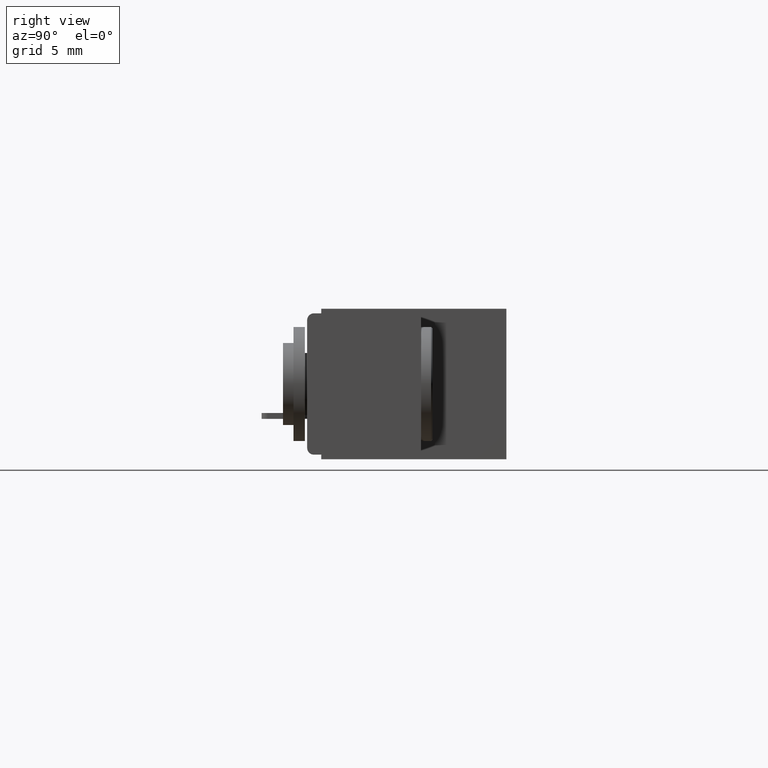
[diagram: clean part render]
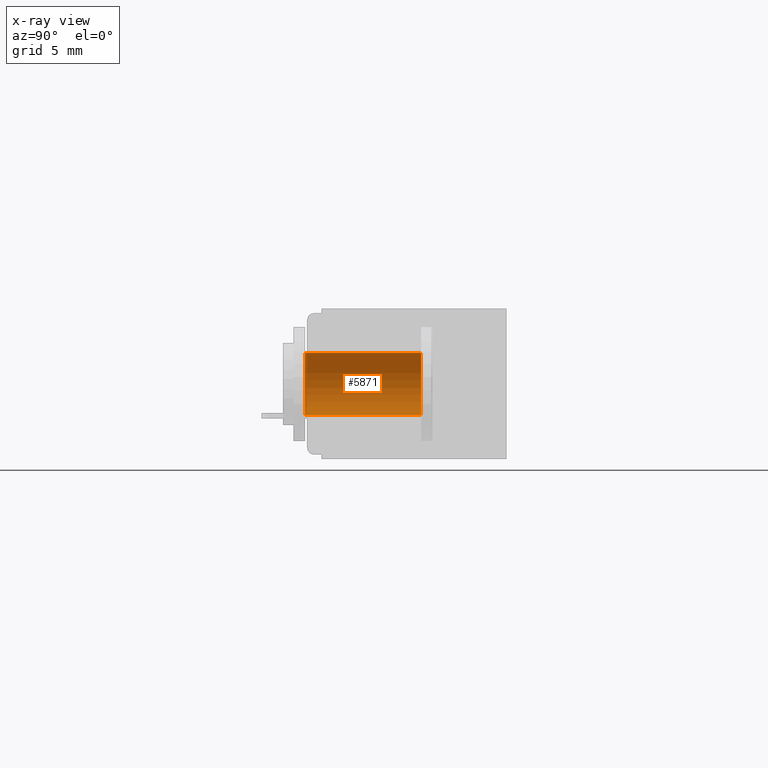
[diagram: x-ray — body ghosted, one internal face saturated and labeled with its STEP entity id]
A machine part, right view, then the same camera in x-ray: the body is ghosted and one INTERNAL B-rep face — a face not visible from any outside direction — is saturated and labeled: STEP entity #5871.
In plain terms, the highlighted cylindrical surface (edge-blend (fillet) strip) has radius 1.7272 mm, axis along (-0, 1, 0).
Its self-contained STEP definition (entity closure, byte-faithful):
#634 = VERTEX_POINT ( 'NONE', #12532 ) ;
#905 = CARTESIAN_POINT ( 'NONE',  ( 4.349588526109266700E-033, 0.2800000000000000300, -0.06800000000000001900 ) ) ;
#937 = LINE ( 'NONE', #8521, #9348 ) ;
#1557 = VERTEX_POINT ( 'NONE', #8668 ) ;
#2229 = VERTEX_POINT ( 'NONE', #905 ) ;
#2459 = EDGE_LOOP ( 'NONE', ( #6359, #6346, #6136, #5131 ) ) ;
#2898 = VERTEX_POINT ( 'NONE', #4845 ) ;
#2994 = AXIS2_PLACEMENT_3D ( 'NONE', #3608, #10700, #4733 ) ;
#3509 = DIRECTION ( 'NONE',  ( -3.408749858497505200E-034, 0.0000000000000000000, 1.000000000000000000 ) ) ;
#3536 = EDGE_CURVE ( 'NONE', #2898, #634, #3785, .T. ) ;
#3578 = DIRECTION ( 'NONE',  ( -2.465190328815661900E-032, 1.000000000000000000, 0.0000000000000000000 ) ) ;
#3608 = CARTESIAN_POINT ( 'NONE',  ( 0.0000000000000000000, 0.2800000000000000300, 0.0000000000000000000 ) ) ;
#3785 = CIRCLE ( 'NONE', #10490, 0.06800000000000001900 ) ;
#3867 = FACE_OUTER_BOUND ( 'NONE', #2459, .T. ) ;
#4093 = DIRECTION ( 'NONE',  ( 3.408749858497505200E-034, 0.0000000000000000000, -1.000000000000000000 ) ) ;
#4137 = CARTESIAN_POINT ( 'NONE',  ( 0.0000000000000000000, 0.3279999999999999000, 0.0000000000000000000 ) ) ;
#4228 = DIRECTION ( 'NONE',  ( 2.465190328815661900E-032, -1.000000000000000000, 0.0000000000000000000 ) ) ;
#4461 = CIRCLE ( 'NONE', #2994, 0.06800000000000001900 ) ;
#4733 = DIRECTION ( 'NONE',  ( -3.408749858497505200E-034, 0.0000000000000000000, 1.000000000000000000 ) ) ;
#4845 = CARTESIAN_POINT ( 'NONE',  ( 8.327598234202008000E-018, 0.02500000000000000500, 0.06800000000000001900 ) ) ;
#5007 = VECTOR ( 'NONE', #5314, 39.37007874015748100 ) ;
#5131 = ORIENTED_EDGE ( 'NONE', *, *, #9267, .F. ) ;
#5247 = CARTESIAN_POINT ( 'NONE',  ( 0.0000000000000000000, 0.02500000000000000500, 0.0000000000000000000 ) ) ;
#5314 = DIRECTION ( 'NONE',  ( 2.465190328815661900E-032, -1.000000000000000000, 0.0000000000000000000 ) ) ;
#5871 = ADVANCED_FACE ( 'NONE', ( #3867 ), #11433, .T. ) ;
#6136 = ORIENTED_EDGE ( 'NONE', *, *, #3536, .T. ) ;
#6346 = ORIENTED_EDGE ( 'NONE', *, *, #8505, .T. ) ;
#6359 = ORIENTED_EDGE ( 'NONE', *, *, #11010, .F. ) ;
#7850 = LINE ( 'NONE', #10245, #5007 ) ;
#8462 = AXIS2_PLACEMENT_3D ( 'NONE', #4137, #4228, #4093 ) ;
#8505 = EDGE_CURVE ( 'NONE', #1557, #2898, #7850, .T. ) ;
#8521 = CARTESIAN_POINT ( 'NONE',  ( 2.317949903778304200E-035, 0.3279999999999999000, -0.06800000000000001900 ) ) ;
#8668 = CARTESIAN_POINT ( 'NONE',  ( 8.327598234202008000E-018, 0.2800000000000000300, 0.06800000000000001900 ) ) ;
#9267 = EDGE_CURVE ( 'NONE', #2229, #634, #937, .T. ) ;
#9348 = VECTOR ( 'NONE', #11932, 39.37007874015748100 ) ;
#10245 = CARTESIAN_POINT ( 'NONE',  ( 8.327598234202003400E-018, 0.3279999999999999000, 0.06800000000000001900 ) ) ;
#10490 = AXIS2_PLACEMENT_3D ( 'NONE', #5247, #3578, #3509 ) ;
#10700 = DIRECTION ( 'NONE',  ( -2.465190328815661900E-032, 1.000000000000000000, 0.0000000000000000000 ) ) ;
#11010 = EDGE_CURVE ( 'NONE', #1557, #2229, #4461, .T. ) ;
#11433 = CYLINDRICAL_SURFACE ( 'NONE', #8462, 0.06800000000000001900 ) ;
#11932 = DIRECTION ( 'NONE',  ( 2.465190328815661900E-032, -1.000000000000000000, 0.0000000000000000000 ) ) ;
#12532 = CARTESIAN_POINT ( 'NONE',  ( 4.349588526109266700E-033, 0.02500000000000000500, -0.06800000000000001900 ) ) ;